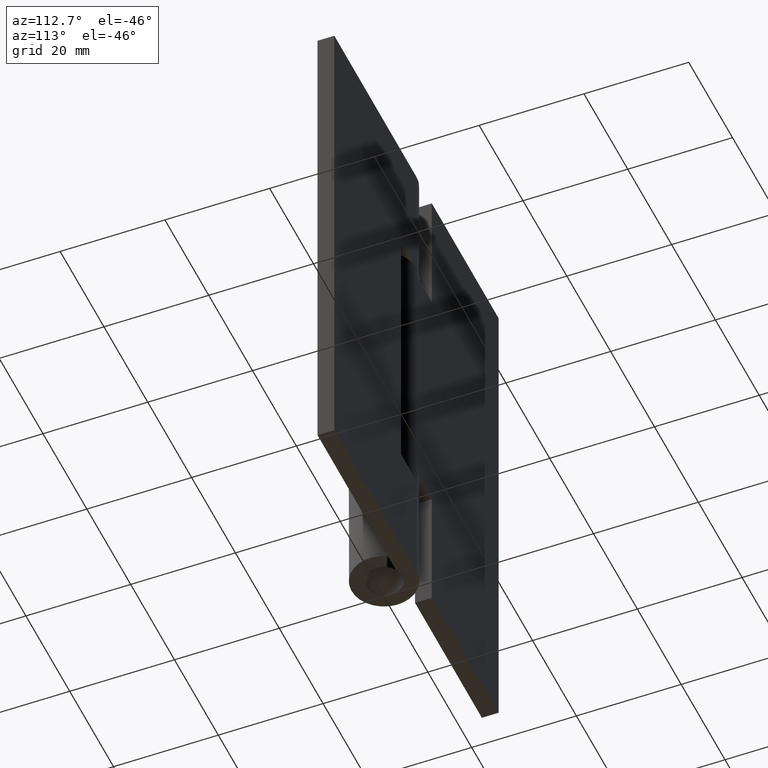
[diagram: clean part render]
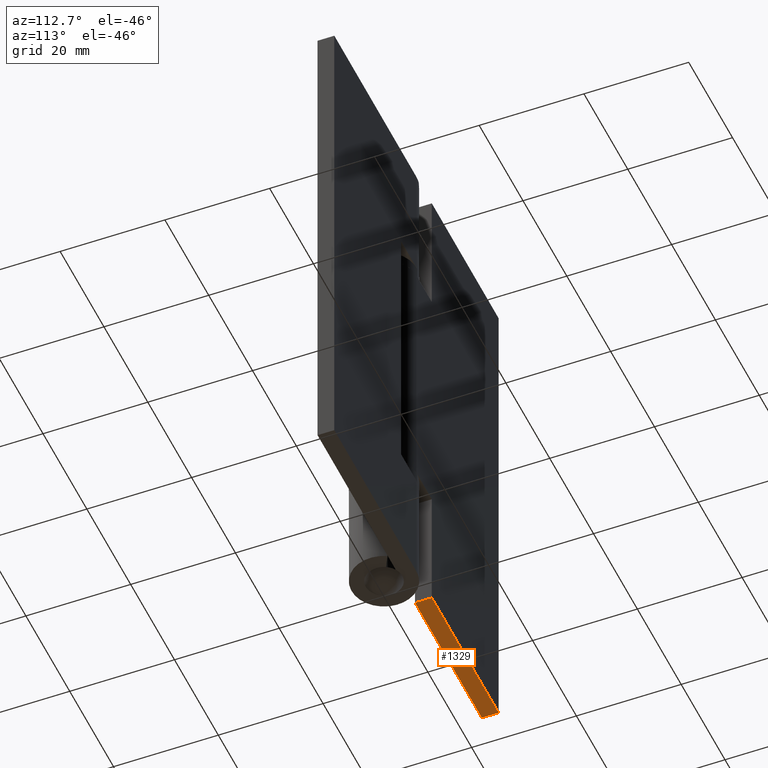
[diagram: same view with one face highlighted and labeled with its STEP entity id]
A machine part, auxiliary view. The second image highlights one B-rep face of the part: STEP entity #1329.
In plain terms, the highlighted face is a freeform B-spline surface patch.
Its self-contained STEP definition (entity closure, byte-faithful):
#1173=CARTESIAN_POINT('',(-6.999999999999901,3.0,0.0));
#1174=VERTEX_POINT('',#1173);
#1180=CARTESIAN_POINT('',(-6.999999999999901,6.200001000000000,0.0));
#1181=VERTEX_POINT('',#1180);
#1182=CARTESIAN_POINT('',(-6.999999999999901,3.0,0.0));
#1183=CARTESIAN_POINT('',(-6.999999999999901,6.200001000000000,0.0));
#1184=QUASI_UNIFORM_CURVE('',1,(#1182,#1183),.UNSPECIFIED.,.F.,.U.);
#1185=EDGE_CURVE('',#1174,#1181,#1184,.T.);
#1302=CARTESIAN_POINT('',(-39.023474940885087,2.840159967684873,0.0));
#1303=CARTESIAN_POINT('',(-5.476524241041064,2.840159967684873,0.0));
#1304=CARTESIAN_POINT('',(-39.023474940885087,6.359840889263936,0.0));
#1305=CARTESIAN_POINT('',(-5.476524241041063,6.359840889263936,0.0));
#1306=B_SPLINE_SURFACE_WITH_KNOTS('',1,1,((#1302,#1304),(#1303,#1305)),.UNSPECIFIED.,.F.,.F.,.U.,(2,2),(2,2),(0.0,33.546950699844032),(0.0,3.519680921579062),.UNSPECIFIED.);
#1307=ORIENTED_EDGE('',*,*,#1185,.F.);
#1308=CARTESIAN_POINT('',(-37.500000000000000,3.0,0.0));
#1309=VERTEX_POINT('',#1308);
#1310=CARTESIAN_POINT('',(-6.999999999999901,3.0,0.0));
#1311=CARTESIAN_POINT('',(-37.500000000000000,3.0,0.0));
#1312=QUASI_UNIFORM_CURVE('',1,(#1310,#1311),.UNSPECIFIED.,.F.,.U.);
#1313=EDGE_CURVE('',#1174,#1309,#1312,.T.);
#1314=ORIENTED_EDGE('',*,*,#1313,.T.);
#1315=CARTESIAN_POINT('',(-37.500000000000000,6.200001000000000,0.0));
#1316=VERTEX_POINT('',#1315);
#1317=CARTESIAN_POINT('',(-37.500000000000000,3.0,0.0));
#1318=CARTESIAN_POINT('',(-37.500000000000000,6.200001000000000,0.0));
#1319=QUASI_UNIFORM_CURVE('',1,(#1317,#1318),.UNSPECIFIED.,.F.,.U.);
#1320=EDGE_CURVE('',#1309,#1316,#1319,.T.);
#1321=ORIENTED_EDGE('',*,*,#1320,.T.);
#1322=CARTESIAN_POINT('',(-37.500000000000000,6.200001000000000,0.0));
#1323=CARTESIAN_POINT('',(-6.999999999999901,6.200001000000000,0.0));
#1324=QUASI_UNIFORM_CURVE('',1,(#1322,#1323),.UNSPECIFIED.,.F.,.U.);
#1325=EDGE_CURVE('',#1316,#1181,#1324,.T.);
#1326=ORIENTED_EDGE('',*,*,#1325,.T.);
#1327=EDGE_LOOP('',(#1307,#1314,#1321,#1326));
#1328=FACE_OUTER_BOUND('',#1327,.T.);
#1329=ADVANCED_FACE('',(#1328),#1306,.F.);